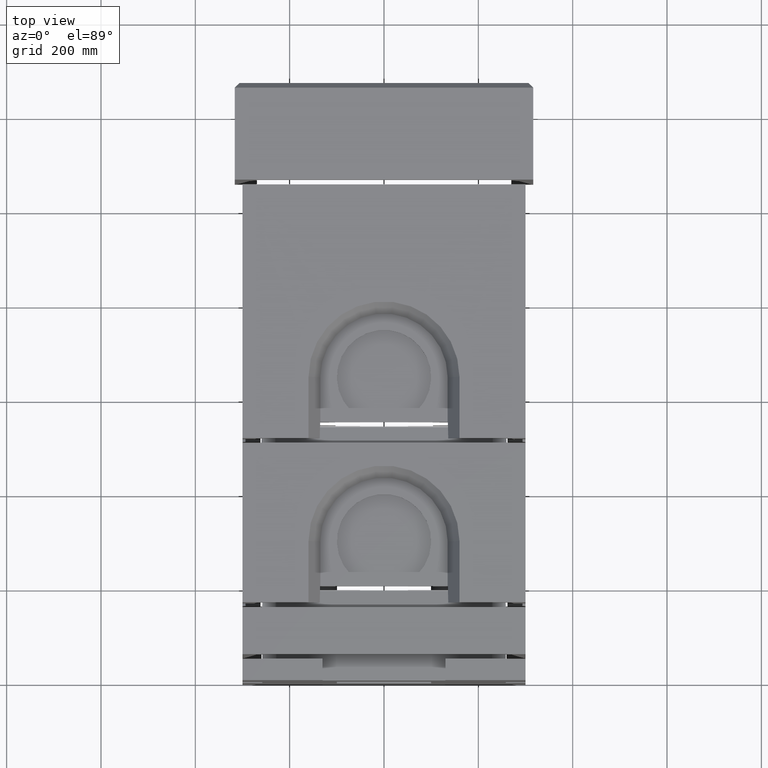
[diagram: clean part render]
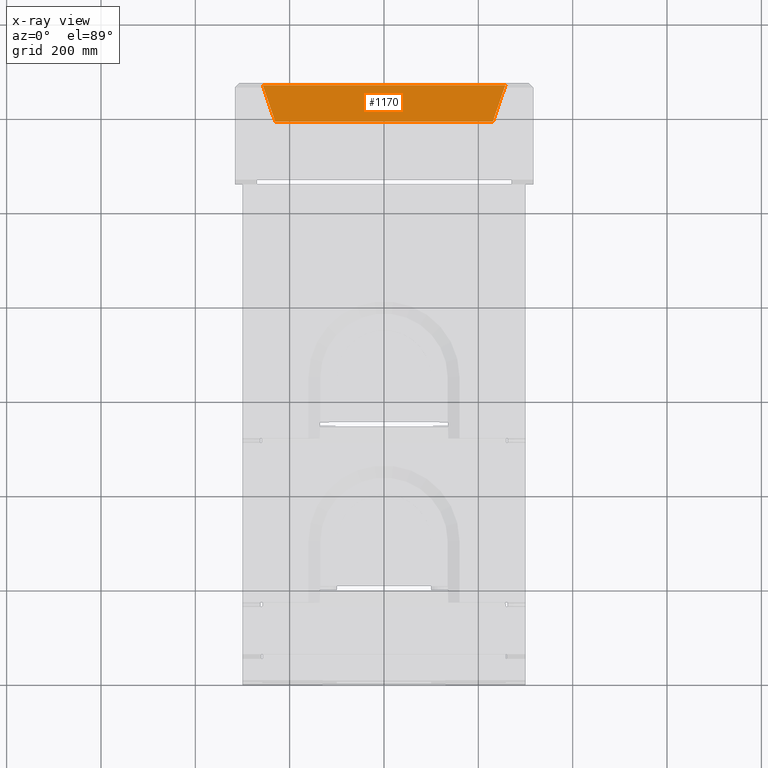
[diagram: x-ray — body ghosted, one internal face saturated and labeled with its STEP entity id]
A machine part, top view, then the same camera in x-ray: the body is ghosted and one INTERNAL B-rep face — a face not visible from any outside direction — is saturated and labeled: STEP entity #1170.
In plain terms, the highlighted planar face has unit normal (0, -0.3256, 0.9455).
Its self-contained STEP definition (entity closure, byte-faithful):
#337 = ORIENTED_EDGE ( 'NONE', *, *, #26515, .T. ) ;
#1170 = ADVANCED_FACE ( 'NONE', ( #28564 ), #4814, .F. ) ;
#1361 = DIRECTION ( 'NONE',  ( -0.3095746637154963010, -0.8990701058153778291, -0.3095746637154965231 ) ) ;
#2140 = EDGE_CURVE ( 'NONE', #20718, #3174, #24338, .T. ) ;
#2400 = CARTESIAN_POINT ( 'NONE',  ( -230.7256904246573583, 1185.174431845545541, 231.4618543774332124 ) ) ;
#2959 = DIRECTION ( 'NONE',  ( 0.0000000000000000000, -0.3255681544571572550, 0.9455185755993167351 ) ) ;
#3174 = VERTEX_POINT ( 'NONE', #9576 ) ;
#3612 = DIRECTION ( 'NONE',  ( -1.000000000000000000, -0.0000000000000000000, 0.0000000000000000000 ) ) ;
#4344 = CARTESIAN_POINT ( 'NONE',  ( 230.4934649169550767, 1184.500000000002501, 231.2296288697308455 ) ) ;
#4557 = CARTESIAN_POINT ( 'NONE',  ( 257.2044838866327723, 1262.074431845545405, 257.9406478394084843 ) ) ;
#4814 = PLANE ( 'NONE',  #9714 ) ;
#8024 = DIRECTION ( 'NONE',  ( 0.0000000000000000000, -0.9455185755993167351, -0.3255681544571572550 ) ) ;
#8609 = CARTESIAN_POINT ( 'NONE',  ( -230.4934649169550198, 1184.500000000002501, 231.2296288697308455 ) ) ;
#9576 = CARTESIAN_POINT ( 'NONE',  ( -257.2044838866327723, 1262.074431845545405, 257.9406478394084843 ) ) ;
#9714 = AXIS2_PLACEMENT_3D ( 'NONE', #13474, #2959, #8024 ) ;
#10553 = ORIENTED_EDGE ( 'NONE', *, *, #27912, .T. ) ;
#12824 = EDGE_CURVE ( 'NONE', #20718, #14931, #19679, .T. ) ;
#13474 = CARTESIAN_POINT ( 'NONE',  ( -260.4999999999999432, 1265.388352231688486, 259.0817221366010585 ) ) ;
#14277 = CARTESIAN_POINT ( 'NONE',  ( -230.7256904246575004, 1185.174431845545541, 231.4618543774331840 ) ) ;
#14931 = VERTEX_POINT ( 'NONE', #23081 ) ;
#15534 = ORIENTED_EDGE ( 'NONE', *, *, #2140, .F. ) ;
#18535 = ORIENTED_EDGE ( 'NONE', *, *, #12824, .T. ) ;
#19679 = LINE ( 'NONE', #4344, #25390 ) ;
#20224 = VERTEX_POINT ( 'NONE', #14277 ) ;
#20699 = VECTOR ( 'NONE', #3612, 1000.000000000000000 ) ;
#20718 = VERTEX_POINT ( 'NONE', #4557 ) ;
#21981 = DIRECTION ( 'NONE',  ( -0.3095746637154969116, 0.8990701058153776071, 0.3095746637154961900 ) ) ;
#23081 = CARTESIAN_POINT ( 'NONE',  ( 230.7256904246573868, 1185.174431845545541, 231.4618543774331840 ) ) ;
#23898 = LINE ( 'NONE', #2400, #24723 ) ;
#24338 = LINE ( 'NONE', #29455, #20699 ) ;
#24723 = VECTOR ( 'NONE', #30765, 1000.000000000000000 ) ;
#25390 = VECTOR ( 'NONE', #1361, 1000.000000000000000 ) ;
#25714 = LINE ( 'NONE', #8609, #31051 ) ;
#26515 = EDGE_CURVE ( 'NONE', #20224, #3174, #25714, .T. ) ;
#27912 = EDGE_CURVE ( 'NONE', #14931, #20224, #23898, .T. ) ;
#28564 = FACE_OUTER_BOUND ( 'NONE', #33982, .T. ) ;
#29455 = CARTESIAN_POINT ( 'NONE',  ( 258.1774050254441590, 1262.074431845545178, 257.9406478394084843 ) ) ;
#30765 = DIRECTION ( 'NONE',  ( -1.000000000000000000, 0.0000000000000000000, 0.0000000000000000000 ) ) ;
#31051 = VECTOR ( 'NONE', #21981, 1000.000000000000227 ) ;
#33982 = EDGE_LOOP ( 'NONE', ( #15534, #18535, #10553, #337 ) ) ;